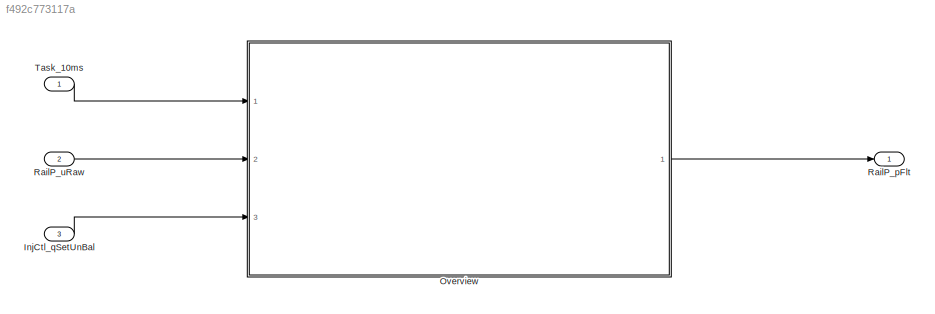
MODEL slx_f492c773117a
KIND model
CONFIG AbsTol = auto
CONFIG EnableMultiTasking = off
CONFIG FixedStep = auto
CONFIG MaxStep = auto
CONFIG MinStep = auto
CONFIG RelTol = 1e-3
CONFIG SampleTimeConstraint = Unconstrained
CONFIG SolverName = VariableStepAuto
CONFIG StartTime = 0.0
CONFIG StopTime = 10.0
BLOCK [Inport] InjCtl_qSetUnBal
  Port = 3
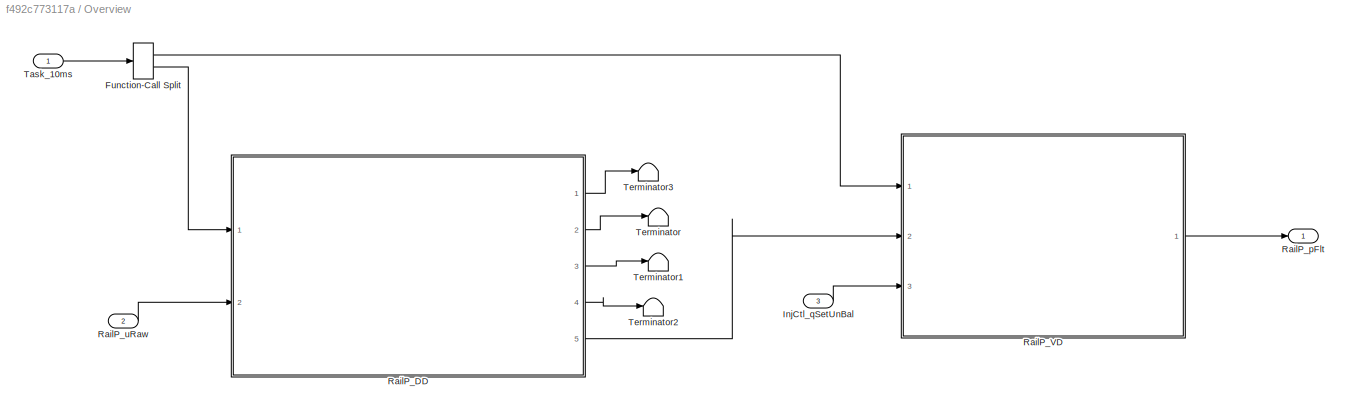
BLOCK [SubSystem] Overview
  Ports = [3, 1]
  RequestExecContextInheritance = off
BLOCK [FunctionCallSplit] Overview/Function-Call Split
  IconShape = distinctive
  NumOutputPorts = 2
  OutputPortLayout = default
  Ports = [1, 2]
BLOCK [Inport] Overview/InjCtl_qSetUnBal
  Port = 3
BLOCK [ModelReference] Overview/RailP_DD
  ModelNameDialog = RailP_DD
  ModelReferenceVersion = 6.4
  Ports = [2, 5]
  ScheduleRates = on
BLOCK [ModelReference] Overview/RailP_VD
  ModelNameDialog = RailP_VD
  ModelReferenceVersion = 6.1
  Ports = [3, 1]
  ScheduleRates = on
BLOCK [Outport] Overview/RailP_pFlt
  VectorParamsAs1DForOutWhenUnconnected = off
BLOCK [Inport] Overview/RailP_uRaw
  Port = 2
BLOCK [Inport] Overview/Task_10ms
BLOCK [Terminator] Overview/Terminator
BLOCK [Terminator] Overview/Terminator1
BLOCK [Terminator] Overview/Terminator2
BLOCK [Terminator] Overview/Terminator3
BLOCK [Outport] RailP_pFlt
BLOCK [Inport] RailP_uRaw
  Port = 2
BLOCK [Inport] Task_10ms
  OutputFunctionCall = on
LINE InjCtl_qSetUnBal:1 -> Overview:3
LINE Overview/Function-Call Split:1 -> Overview/RailP_VD:1
LINE Overview/Function-Call Split:2 -> Overview/RailP_DD:1
LINE Overview/InjCtl_qSetUnBal:1 -> Overview/RailP_VD:3
LINE Overview/RailP_DD:1 -> Overview/Terminator3:1
LINE Overview/RailP_DD:2 -> Overview/Terminator:1
LINE Overview/RailP_DD:3 -> Overview/Terminator1:1
LINE Overview/RailP_DD:4 -> Overview/Terminator2:1
LINE Overview/RailP_DD:5 -> Overview/RailP_VD:2
LINE Overview/RailP_VD:1 -> Overview/RailP_pFlt:1
LINE Overview/RailP_uRaw:1 -> Overview/RailP_DD:2
LINE Overview/Task_10ms:1 -> Overview/Function-Call Split:1
LINE Overview:1 -> RailP_pFlt:1
LINE RailP_uRaw:1 -> Overview:2
LINE Task_10ms:1 -> Overview:1
